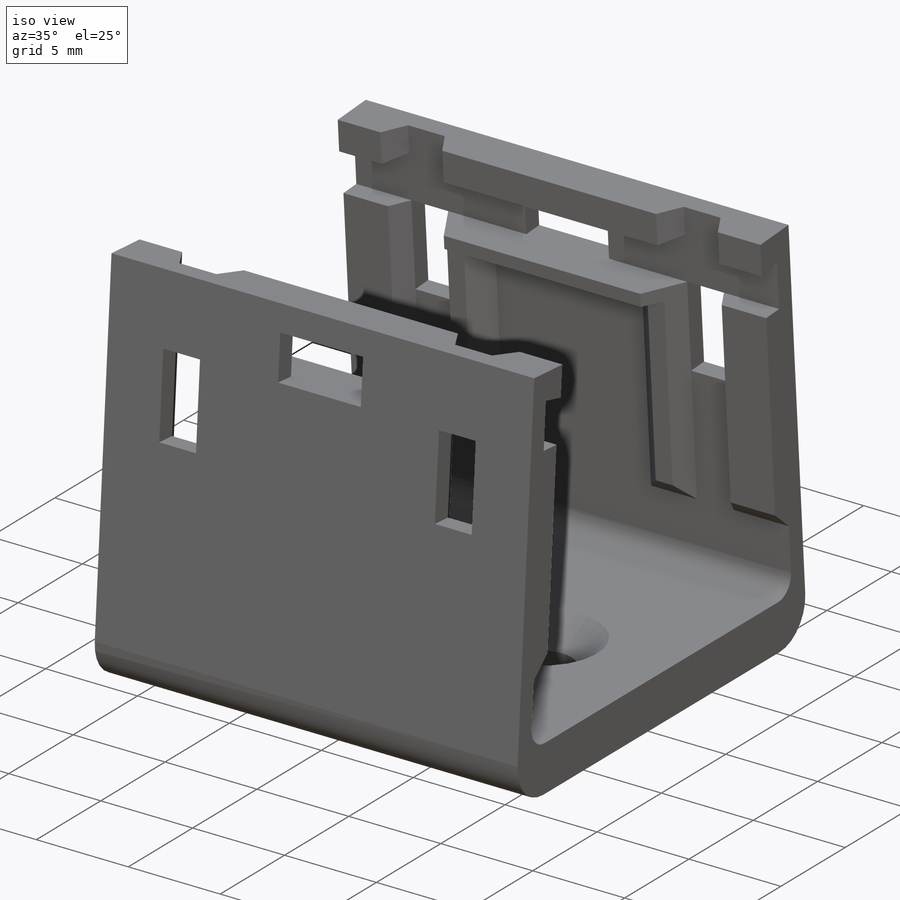
[diagram: iso view]
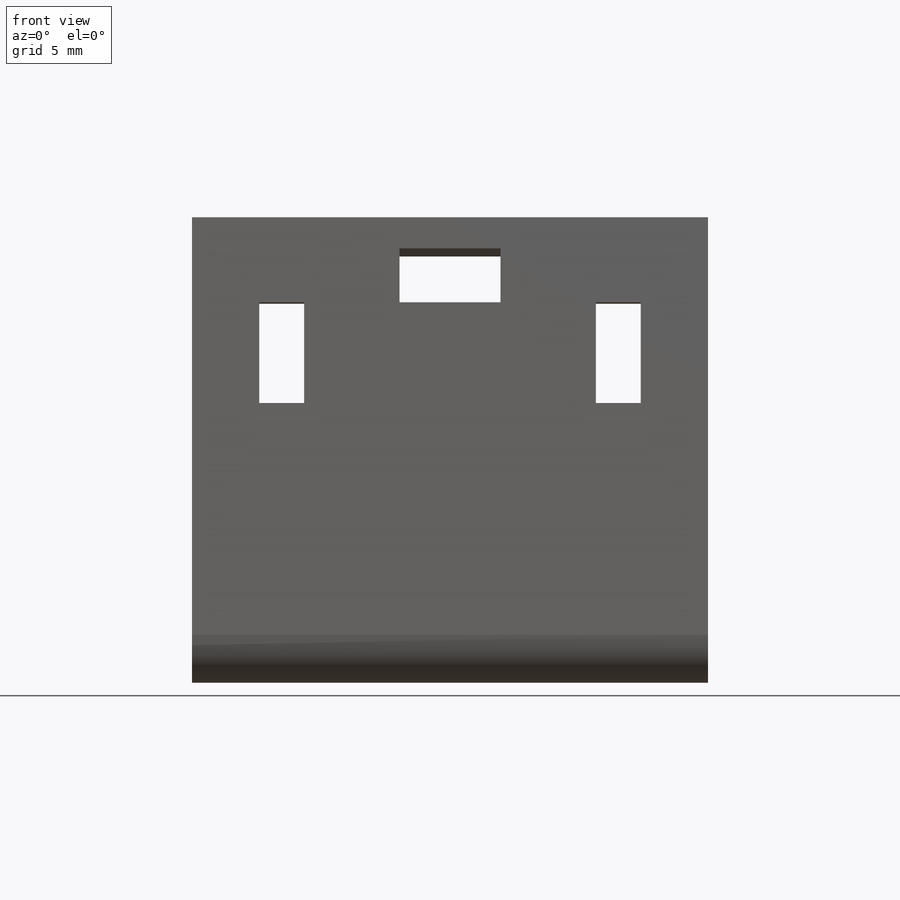
[diagram: front view]
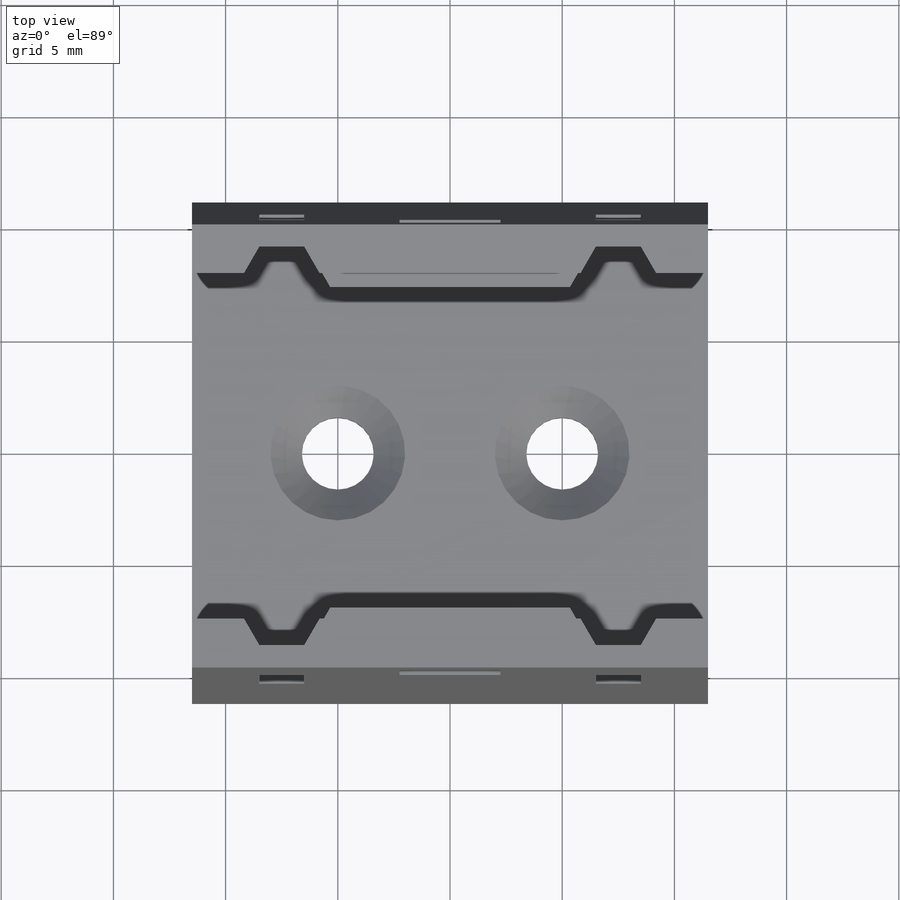
[diagram: top view]
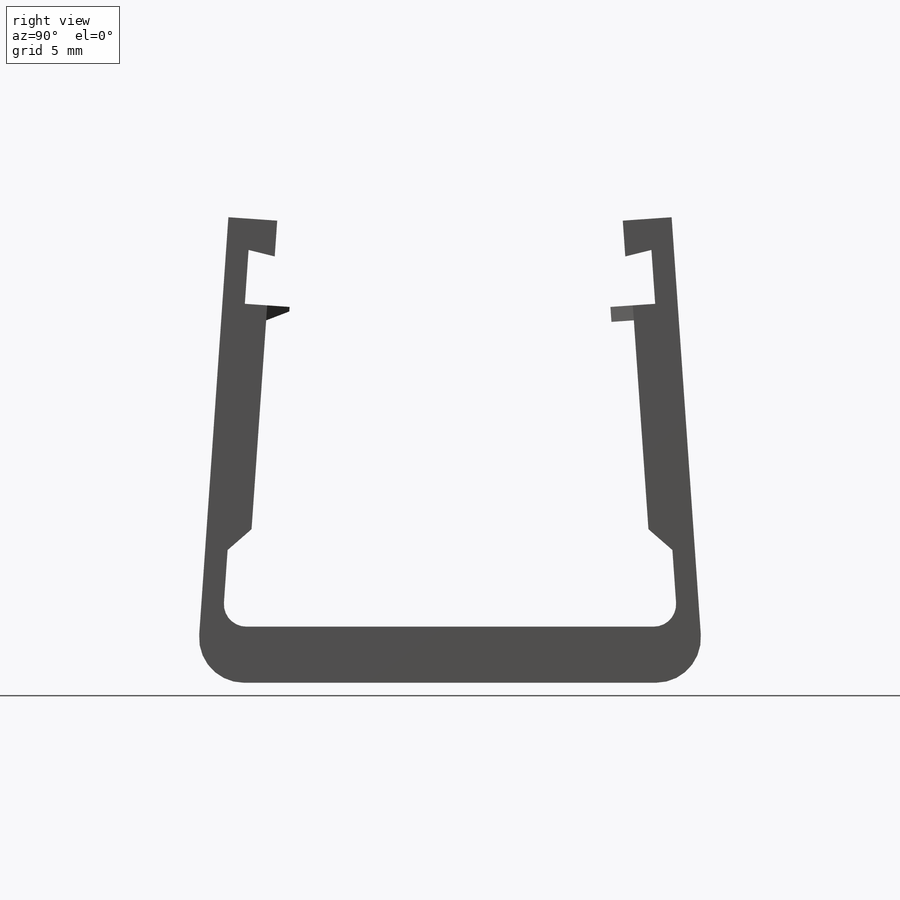
[diagram: right view]
SOLIDWORKS PART (.sldprt)
format: sldprt  version: not decoded by parser v0  size: 382,976 bytes
history: native  units: mm
features: sketch x6, cut_extrude x4, plane x3, extrude x2, fillet x2, material x1, mirror x1, chamfer x1 (+8 scaffold rows collapsed)
feature tree (28):
  scaffold x8  (default folders/planes/origin — collapsed)
  material  "Matériau <non spécifié>"
  plane  "Plan de face"
  plane  "Plan de dessus"
  plane  "Plan de droite"
  sketch  "Esquisse1"  dims[c1.D1=1.0mm c1.D2=2.5mm c1.D3=~57.055804mm c2.D3=94.0deg c2.D4=17.0mm c2.D5=0.5mm c2.D6=1.9mm c2.D7=1.6mm c2.D8=10.15mm c2.D9=~1.895372mm c3.D9=90.0deg c3.D6=~1.895372mm c4.D6=80.0deg c4.D9=1.9mm c4.D10=1.2mm c4.D11=2.0mm c5.D6=~2.176455mm c6.D6=10.0deg c6.D4=~16.829829mm c6.D5=17.0mm c6.D9=1.0mm c6.D11=11.0mm c6.D12=1.0mm c6.D13=~1.05067mm c7.D13=45.0deg]
  extrude  "Boss.-Extru.1"  Depth=23mm
  sketch  "Esquisse2"  dims[D1=3.2mm D2=10.0mm]
  cut_extrude  "Enlèv. mat.-Extru.1"  Depth=20mm
  fillet  "Congé1"  Radius=1mm
  fillet  "Congé2"  Radius=2mm
  sketch  "Esquisse3"  dims[c1.D1=2.0mm c1.D2=~1.068849mm c2.D2=60.0deg c2.D3=1.8mm c2.D4=1.0mm c2.D5=~1.995782mm c3.D3=13.0mm c3.D4=1.0mm]
  cut_extrude  "Enlèv. mat.-Extru.2"  [1 undecoded]
  sketch  "Esquisse4"  dims[D1=8.0mm]
  cut_extrude  "Enlèv. mat.-Extru.3"  Depth=4mm
  sketch  "Esquisse5"  dims[D1=4.5mm]
  cut_extrude  "Enlèv. mat.-Extru.4"  Depth=20mm
  sketch  "Esquisse8"  dims[D1=1.0mm]
  extrude  "Boss.-Extru.2"  [1 undecoded]
  mirror  "Symétrie1"
  chamfer  "Chanfrein1"  Distance=1.4mm Angle=45deg
decode coverage: 13 of 16 modeling features carry decoded parameters
note: ~ marks probable driven/reference dimensions
note: 2 parameter values undecoded
note: suppression state not decoded; provenance and decode notes live in map.json
